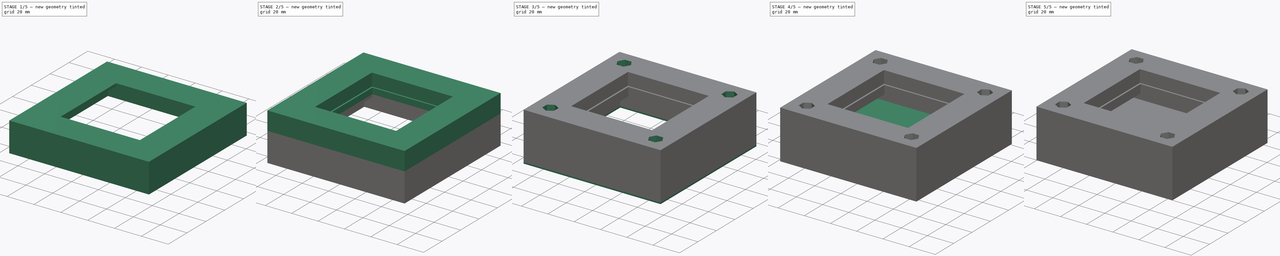
[diagram: build sequence overview — one tinted view per stage of 5, left to right]
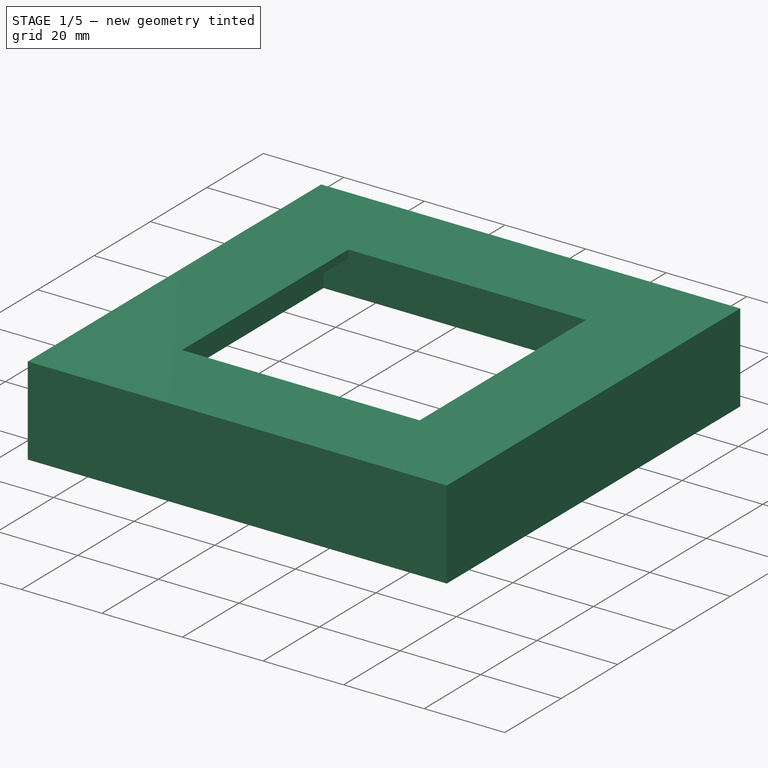
[diagram: stage 1 of 5 — iso view after this stage's code; geometry added in this stage tinted green]
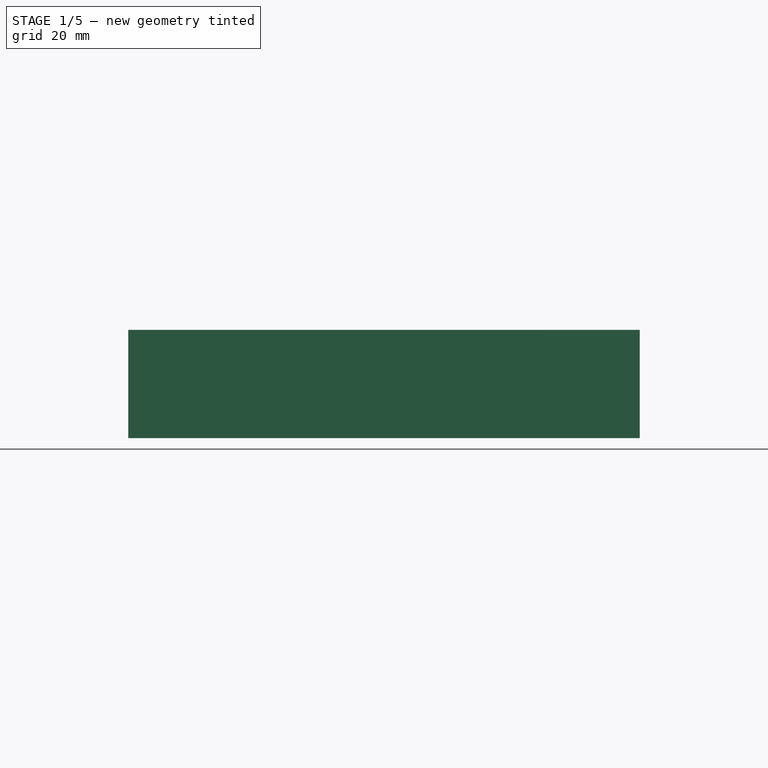
[diagram: stage 1 of 5 — front view after this stage's code; geometry added in this stage tinted green]
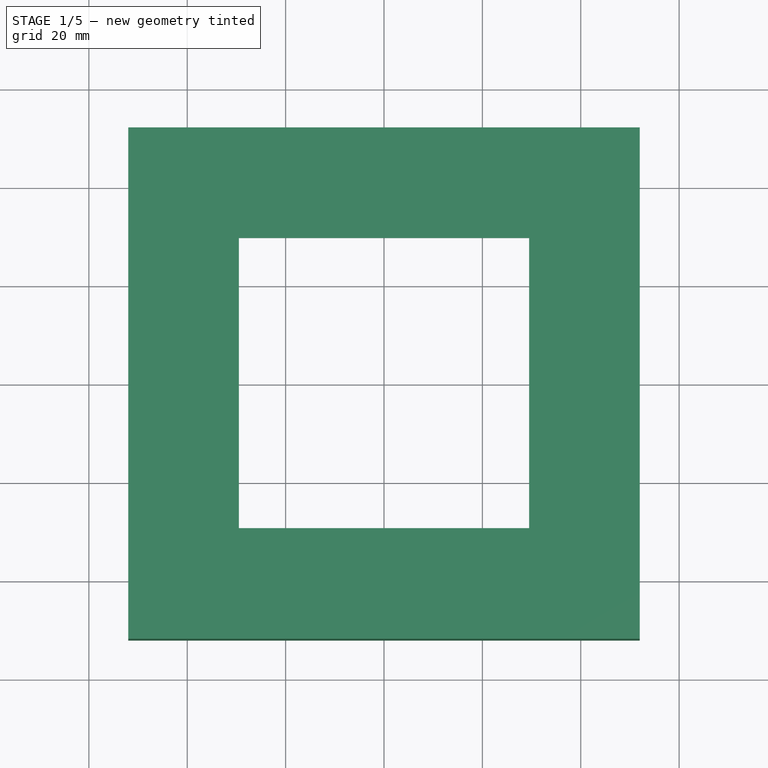
[diagram: stage 1 of 5 — top view after this stage's code; geometry added in this stage tinted green]
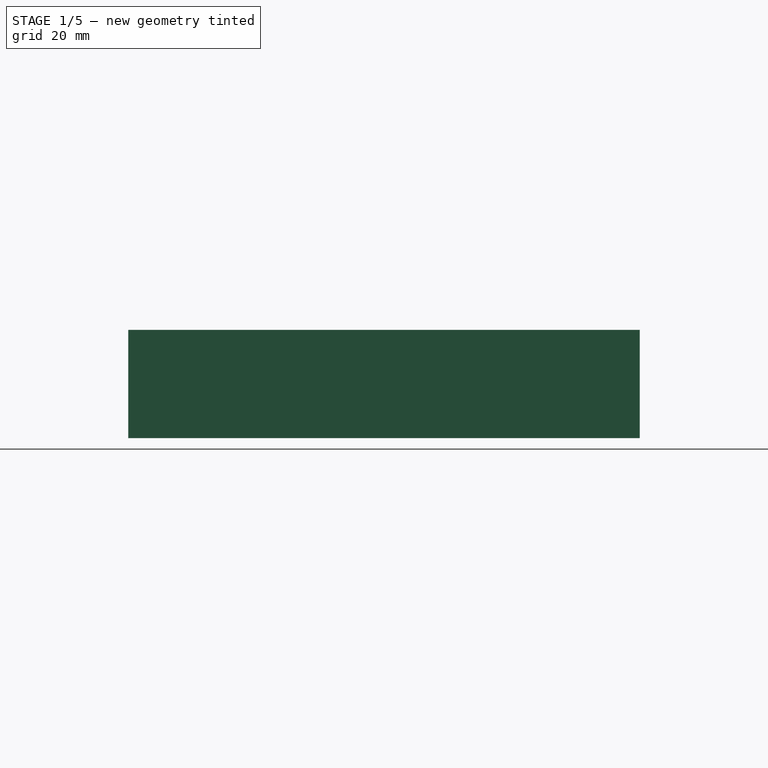
[diagram: stage 1 of 5 — right view after this stage's code; geometry added in this stage tinted green]
FCSTD DOCUMENT  (FreeCAD 1.0R39319 (Git))
Label: Matrix 3 original
License: All rights reserved
LicenseURL: http://en.wikipedia.org/wiki/All_rights_reserved
objects: Sketcher::SketchObject×11, PartDesign::Pad×8, PartDesign::Pocket×6, PartDesign::PolarPattern×2, PartDesign::Body×2, PartDesign::Chamfer×1
note: 73 computed .brp shape members not serialized (recipe doc carries the construction recipe); baked Part::Feature solids carry a one-line shape summary decoded from their .brp

FEATURE [Sketcher::SketchObject] Sketch
  ArcFitTolerance = 0
  AttachmentSupport = -> [XY_Plane]
  FullyConstrained = true
  MakeInternals = false
  MapMode = 5
  sketch-geometry (4):
    g0: LineSegment StartX=-52 StartY=52 StartZ=0 EndX=52 EndY=52 EndZ=0
    g1: LineSegment StartX=52 StartY=52 StartZ=0 EndX=52 EndY=-52 EndZ=0
    g2: LineSegment StartX=52 StartY=-52 StartZ=0 EndX=-52 EndY=-52 EndZ=0
    g3: LineSegment StartX=-52 StartY=-52 StartZ=0 EndX=-52 EndY=52 EndZ=0
  constraints (10):
    c: Coincident(g0,g1)
    c: Coincident(g1,g2)
    c: Coincident(g2,g3)
    c: Coincident(g3,g0)
    c: Horizontal(g2)
    c: Vertical(g1)
    c: Symmetric(g0,g0,g-2)
    c: Symmetric(g2,g0,g-1)
    c: Equal(g3,g0)
    c: DistanceX(g2,g2) = 104
FEATURE [PartDesign::Pad] Pad
  Direction = (1,1,1)
  Length = 22
  Length2 = 100
  Profile = -> Sketch
  Suppressed = false
  Type = 0
FEATURE [Sketcher::SketchObject] Sketch002
  ArcFitTolerance = 0
  AttachmentSupport = -> [XY_Plane]
  FullyConstrained = true
  MakeInternals = false
  MapMode = 5
  sketch-geometry (4):
    g0: LineSegment StartX=-50.1 StartY=50.1 StartZ=0 EndX=50.1 EndY=50.1 EndZ=0
    g1: LineSegment StartX=50.1 StartY=50.1 StartZ=0 EndX=50.1 EndY=-50.1 EndZ=0
    g2: LineSegment StartX=50.1 StartY=-50.1 StartZ=0 EndX=-50.1 EndY=-50.1 EndZ=0
    g3: LineSegment StartX=-50.1 StartY=-50.1 StartZ=0 EndX=-50.1 EndY=50.1 EndZ=0
  constraints (10):
    c: Coincident(g0,g1)
    c: Coincident(g1,g2)
    c: Coincident(g2,g3)
    c: Coincident(g3,g0)
    c: Horizontal(g2)
    c: Vertical(g1)
    c: Symmetric(g0,g0,g-2)
    c: Symmetric(g2,g0,g-1)
    c: Equal(g3,g0)
    c: DistanceX(g2,g2) = 100.2
FEATURE [PartDesign::Pocket] Pocket
  BaseFeature = -> Pad
  Direction = (1,1,1)
  Length = 20
  Length2 = 100
  Profile = -> Sketch002
  Reversed = true
  Suppressed = false
  Type = 0
FEATURE [Sketcher::SketchObject] Sketch003
  ArcFitTolerance = 0
  AttachmentSupport = -> [XY_Plane]
  FullyConstrained = true
  MakeInternals = false
  MapMode = 5
  sketch-geometry (4):
    g0: LineSegment StartX=-29.5 StartY=29.5 StartZ=0 EndX=29.5 EndY=29.5 EndZ=0
    g1: LineSegment StartX=29.5 StartY=29.5 StartZ=0 EndX=29.5 EndY=-29.5 EndZ=0
    g2: LineSegment StartX=29.5 StartY=-29.5 StartZ=0 EndX=-29.5 EndY=-29.5 EndZ=0
    g3: LineSegment StartX=-29.5 StartY=-29.5 StartZ=0 EndX=-29.5 EndY=29.5 EndZ=0
  constraints (10):
    c: Coincident(g0,g1)
    c: Coincident(g1,g2)
    c: Coincident(g2,g3)
    c: Coincident(g3,g0)
    c: Horizontal(g2)
    c: Vertical(g1)
    c: Symmetric(g0,g0,g-2)
    c: Symmetric(g2,g0,g-1)
    c: Equal(g3,g0)
    c: DistanceX(g2,g2) = 59
FEATURE [PartDesign::Pocket] Pocket001
  BaseFeature = -> Pocket
  Direction = (1,1,1)
  Length = 5
  Length2 = 100
  Profile = -> Sketch003
  Reversed = true
  Suppressed = false
  Type = 1
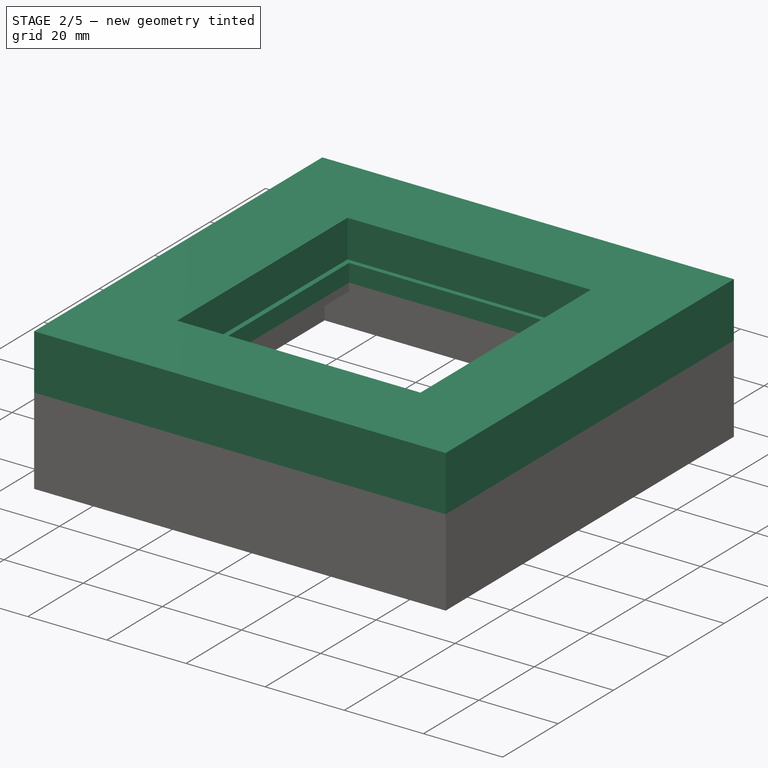
[diagram: stage 2 of 5 — iso view after this stage's code; geometry added in this stage tinted green]
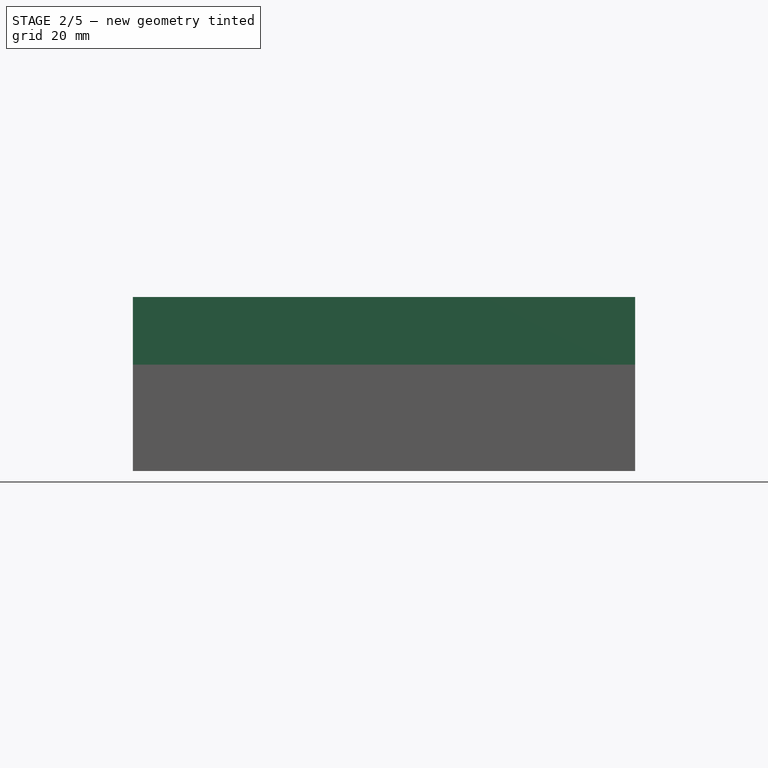
[diagram: stage 2 of 5 — front view after this stage's code; geometry added in this stage tinted green]
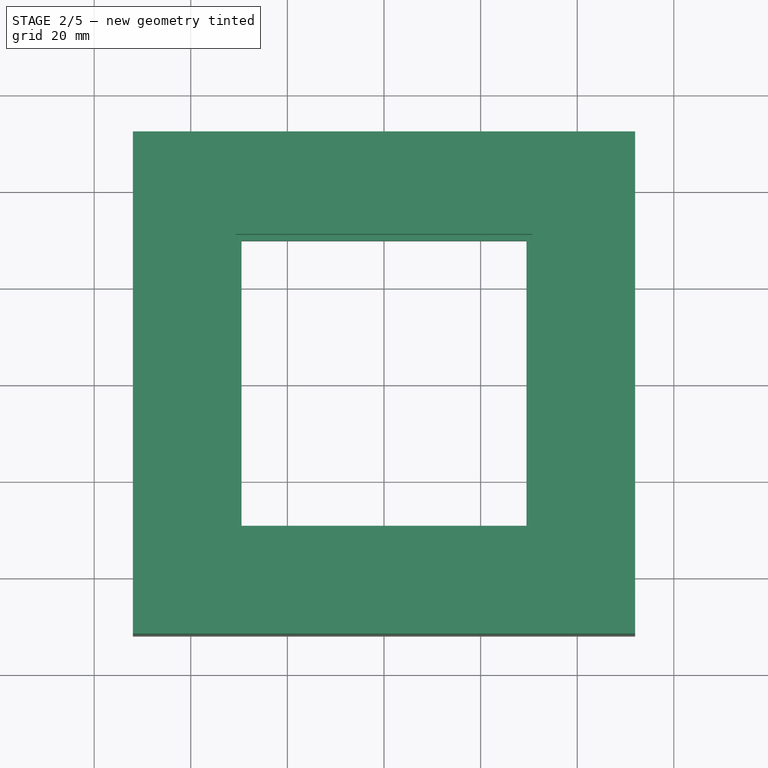
[diagram: stage 2 of 5 — top view after this stage's code; geometry added in this stage tinted green]
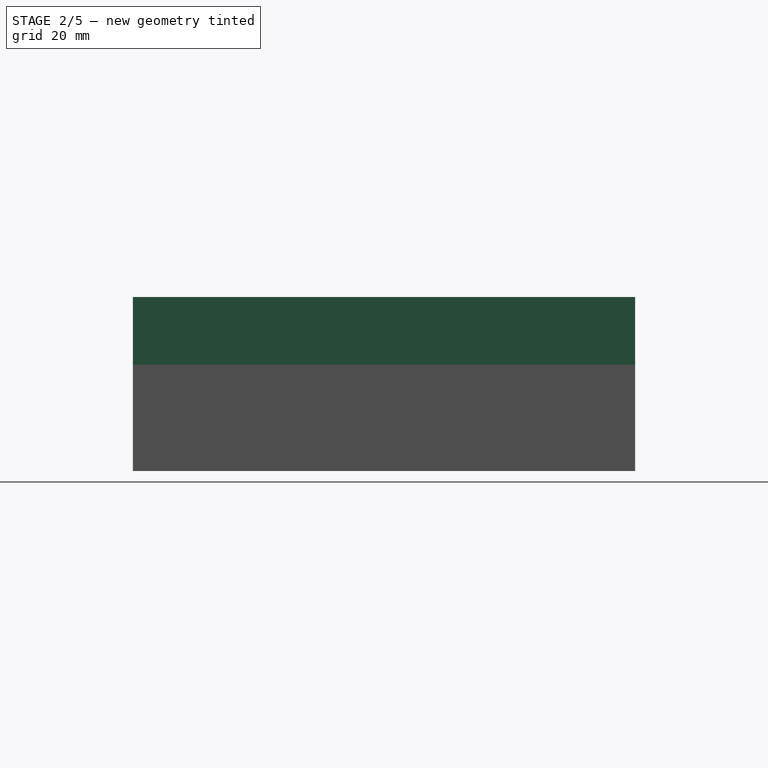
[diagram: stage 2 of 5 — right view after this stage's code; geometry added in this stage tinted green]
FEATURE [PartDesign::Pad] Pad001
  BaseFeature = -> Pocket001
  Direction = (1,1,1)
  Length = 4.5
  Length2 = 100
  Profile = -> Pocket001 [Face5]
  Suppressed = false
  Type = 0
FEATURE [Sketcher::SketchObject] Sketch004
  ArcFitTolerance = 0
  AttachmentSupport = -> [Pad001]
  ExternalGeometry = -> [Pad001]
  FullyConstrained = true
  MakeInternals = false
  MapMode = 5
  Placement = pos=(0,0,26.5) rot=(0,0,1;0rad)
  sketch-geometry (8):
    g0: LineSegment StartX=-52 StartY=52 StartZ=0 EndX=52 EndY=52 EndZ=0
    g1: LineSegment StartX=52 StartY=52 StartZ=0 EndX=52 EndY=-52 EndZ=0
    g2: LineSegment StartX=52 StartY=-52 StartZ=0 EndX=-52 EndY=-52 EndZ=0
    g3: LineSegment StartX=-52 StartY=-52 StartZ=0 EndX=-52 EndY=52 EndZ=0
    g4: LineSegment StartX=-30.75 StartY=30.75 StartZ=0 EndX=30.75 EndY=30.75 EndZ=0
    g5: LineSegment StartX=30.75 StartY=30.75 StartZ=0 EndX=30.75 EndY=-30.75 EndZ=0
    g6: LineSegment StartX=30.75 StartY=-30.75 StartZ=0 EndX=-30.75 EndY=-30.75 EndZ=0
    g7: LineSegment StartX=-30.75 StartY=-30.75 StartZ=0 EndX=-30.75 EndY=30.75 EndZ=0
  constraints (20):
    c: Coincident(g0,g1)
    c: Coincident(g1,g2)
    c: Coincident(g2,g3)
    c: Coincident(g3,g0)
    c: Horizontal(g0)
    c: Horizontal(g2)
    c: Vertical(g1)
    c: Vertical(g3)
    c: Coincident(g0,g-3)
    c: Coincident(g1,g-4)
    c: Coincident(g4,g5)
    c: Coincident(g5,g6)
    c: Coincident(g6,g7)
    c: Coincident(g7,g4)
    c: Horizontal(g4)
    c: Vertical(g5)
    c: Symmetric(g6,g5,g-2)
    c: Symmetric(g4,g6,g-1)
    c: Equal(g7,g4)
    c: DistanceX(g4,g4) = 61.5
FEATURE [PartDesign::Pad] Pad002
  BaseFeature = -> Pad001
  Direction = (1,1,1)
  Length = 1.5
  Length2 = 100
  Profile = -> Sketch004
  Suppressed = false
  Type = 0
FEATURE [PartDesign::Pad] Pad003
  BaseFeature = -> Pad002
  Direction = (1,1,1)
  Length = 8
  Length2 = 100
  Profile = -> Pad002 [Face18]
  Suppressed = false
  Type = 0
FEATURE [Sketcher::SketchObject] Sketch005
  ArcFitTolerance = 0
  AttachmentSupport = -> [Pad003]
  ExternalGeometry = -> [Pad003]
  FullyConstrained = true
  MakeInternals = false
  MapMode = 5
  Placement = pos=(0,0,36) rot=(0,0,1;0rad)
  sketch-geometry (4):
    g0: LineSegment StartX=-3 StartY=-30.75 StartZ=0 EndX=3 EndY=-30.75 EndZ=0
    g1: LineSegment StartX=3 StartY=-30.75 StartZ=0 EndX=3 EndY=-42.75 EndZ=0
    g2: LineSegment StartX=-3 StartY=-42.75 StartZ=0 EndX=-3 EndY=-30.75 EndZ=0
    g3: ArcOfCircle CenterX=-1e-16 CenterY=-42.75 CenterZ=0 NormalX=0 NormalY=0 NormalZ=1 AngleXU=0 Radius=3 StartAngle=3.14159 EndAngle=6.28319
  constraints (10):
    c: Coincident(g0,g1)
    c: Coincident(g2,g0)
    c: Horizontal(g0)
    c: Vertical(g1)
    c: DistanceY(g-3,g0) = 0
    c: Tangent(g2,g3) = 1.5708
    c: Tangent(g1,g3) = 1.5708
    c: Symmetric(g2,g1,g-2)
    c: DistanceX(g0,g0) = 6
    c: DistanceY(g1,g1) = 12
FEATURE [PartDesign::Pocket] Pocket002
  BaseFeature = -> Pad003
  Direction = (1,1,1)
  Length = 7
  Length2 = 100
  Profile = -> Sketch005
  Suppressed = false
  Type = 0
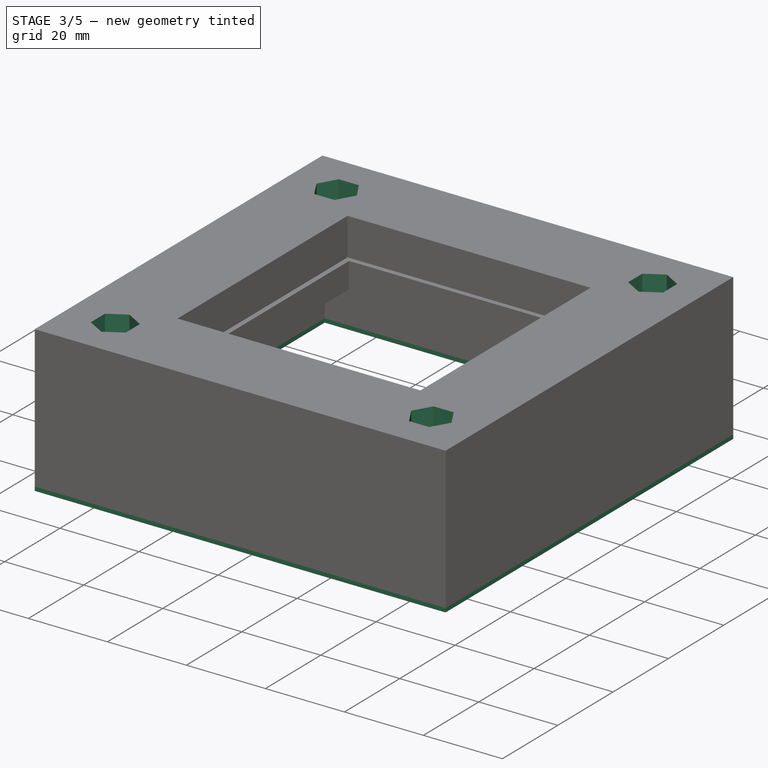
[diagram: stage 3 of 5 — iso view after this stage's code; geometry added in this stage tinted green]
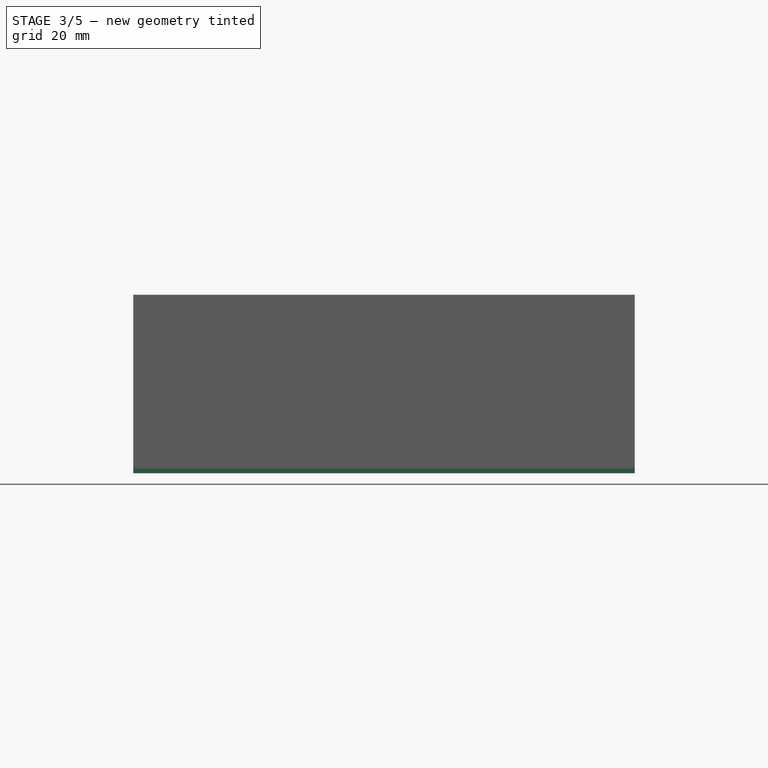
[diagram: stage 3 of 5 — front view after this stage's code; geometry added in this stage tinted green]
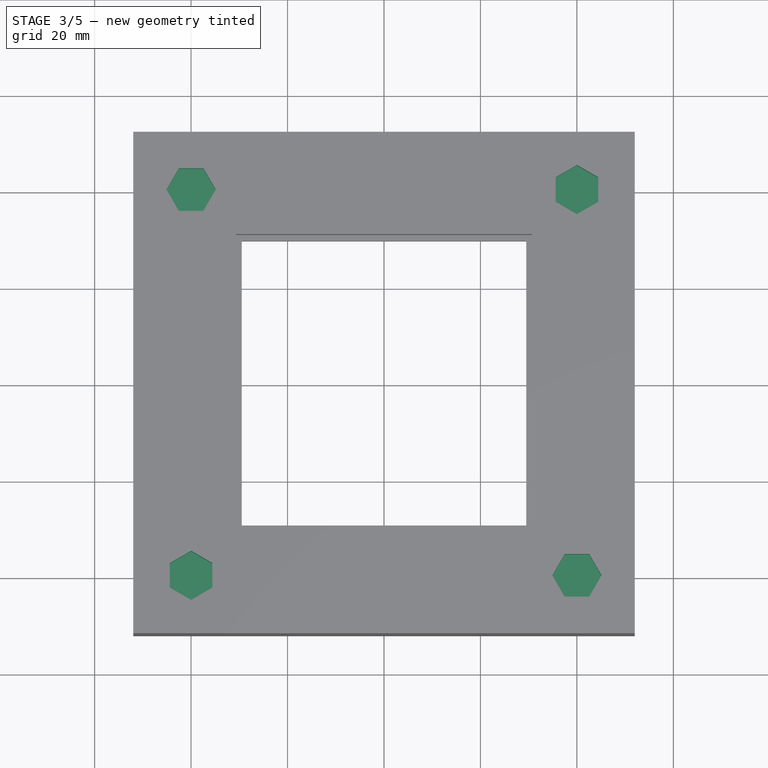
[diagram: stage 3 of 5 — top view after this stage's code; geometry added in this stage tinted green]
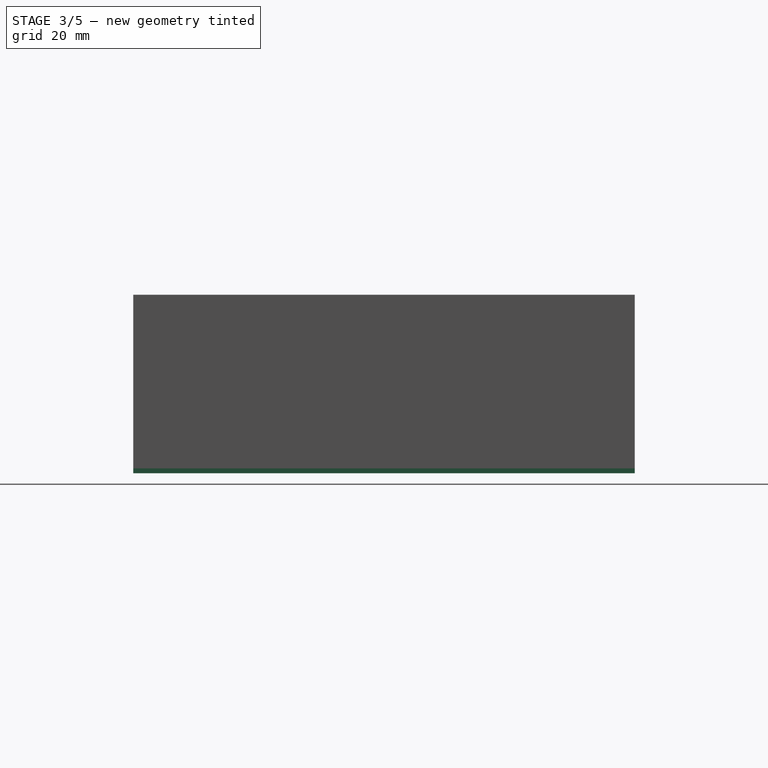
[diagram: stage 3 of 5 — right view after this stage's code; geometry added in this stage tinted green]
FEATURE [Sketcher::SketchObject] Sketch012
  ArcFitTolerance = 0
  AttachmentOffset = pos=(0,0,36) rot=(0,0,1;0rad)
  AttachmentSupport = -> [XY_Plane]
  FullyConstrained = true
  MakeInternals = false
  MapMode = 5
  Placement = pos=(0,0,36) rot=(0,0,1;0rad)
  sketch-geometry (7):
    g0: LineSegment StartX=-42.55 StartY=35.5833 StartZ=0 EndX=-37.45 EndY=35.5833 EndZ=0
    g1: LineSegment StartX=-37.45 StartY=35.5833 StartZ=0 EndX=-34.9 EndY=40 EndZ=0
    g2: LineSegment StartX=-34.9 StartY=40 StartZ=0 EndX=-37.45 EndY=44.4167 EndZ=0
    g3: LineSegment StartX=-37.45 StartY=44.4167 StartZ=0 EndX=-42.55 EndY=44.4167 EndZ=0
    g4: LineSegment StartX=-42.55 StartY=44.4167 StartZ=0 EndX=-45.1 EndY=40 EndZ=0
    g5: LineSegment StartX=-45.1 StartY=40 StartZ=0 EndX=-42.55 EndY=35.5833 EndZ=0
    g6: Circle [constr] CenterX=-40 CenterY=40 CenterZ=0 NormalX=0 NormalY=0 NormalZ=1 AngleXU=0 Radius=5.1
  constraints (17):
    c: Coincident(g0,g1)
    c: Coincident(g1,g2)
    c: Coincident(g2,g3)
    c: Coincident(g3,g4)
    c: Coincident(g4,g5)
    c: Coincident(g5,g0)
    c: Equal(g0, g1-g5) x5
    c: PointOnObject(g0,g6)
    c: PointOnObject(g1,g6)
    c: PointOnObject(g2,g6)
    c: PointOnObject(g3,g6)
    c: PointOnObject(g4,g6)
    c: PointOnObject(g5,g6)
    c: DistanceX(g6,g-1) = 40
    c: DistanceY(g-1,g6) = 40
    c: Horizontal(g3)
    c: Diameter(g6) = 10.2
FEATURE [PartDesign::Pocket] Pocket005
  BaseFeature = -> Pocket002
  Direction = (1,1,1)
  Length = 6
  Length2 = 100
  Profile = -> Sketch012
  Suppressed = false
  Type = 0
FEATURE [PartDesign::PolarPattern] PolarPattern
  Angle = 360
  Axis = -> Sketch012 [N_Axis]
  BaseFeature = -> Pocket005
  Mode = 0
  Occurrences = 4
  Offset = 120
  Originals = -> [Pocket005]
  Suppressed = false
  TransformMode = 0
FEATURE [PartDesign::Body] Body001  label="Cover"
  AllowCompound = false
  Group = -> [Sketch007,Sketch008,Pad004,Pad005,Sketch009,Pocket003,Sketch010,Pocket004,Sketch013,Pad007,PolarPattern001,Chamfer]
  Origin = -> Origin001
  Placement = pos=(0,0,36) rot=(0,0,1;0rad)
  Tip = -> Chamfer
FEATURE [PartDesign::Pad] Pad008
  BaseFeature = -> PolarPattern
  Direction = (1,1,1)
  Length = 1
  Length2 = 100
  Profile = -> PolarPattern [Face4]
  Suppressed = false
  Type = 0
FEATURE [PartDesign::Body] Body  label="Box"
  AllowCompound = false
  Group = -> [Sketch,Pad,Sketch002,Pocket,Sketch003,Pocket001,Pad001,Sketch004,Pad002,Pad003,Sketch005,Pocket002,Sketch012,Pocket005,PolarPattern,Pad008]
  Origin = -> Origin
  Tip = -> Pad008
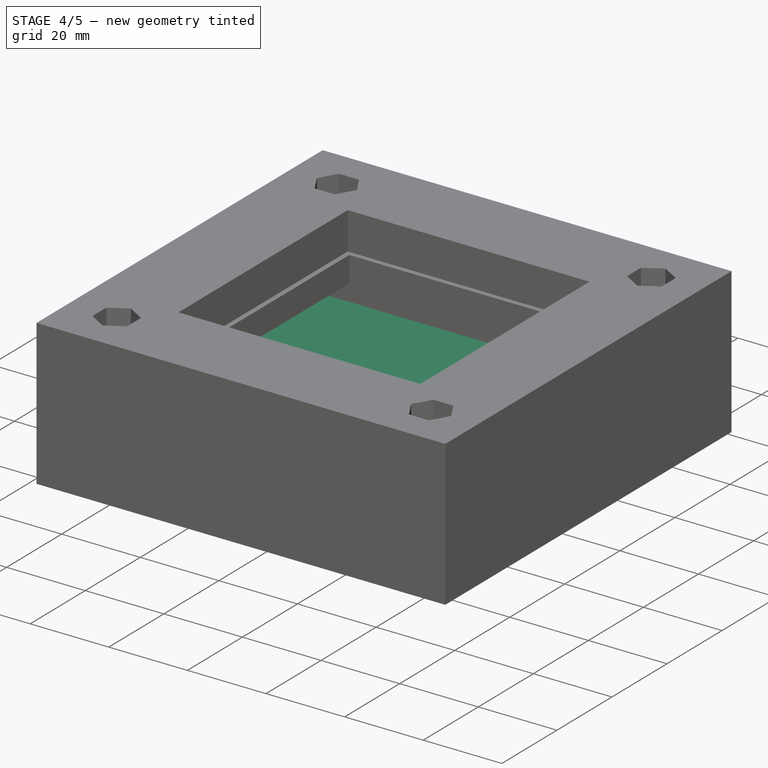
[diagram: stage 4 of 5 — iso view after this stage's code; geometry added in this stage tinted green]
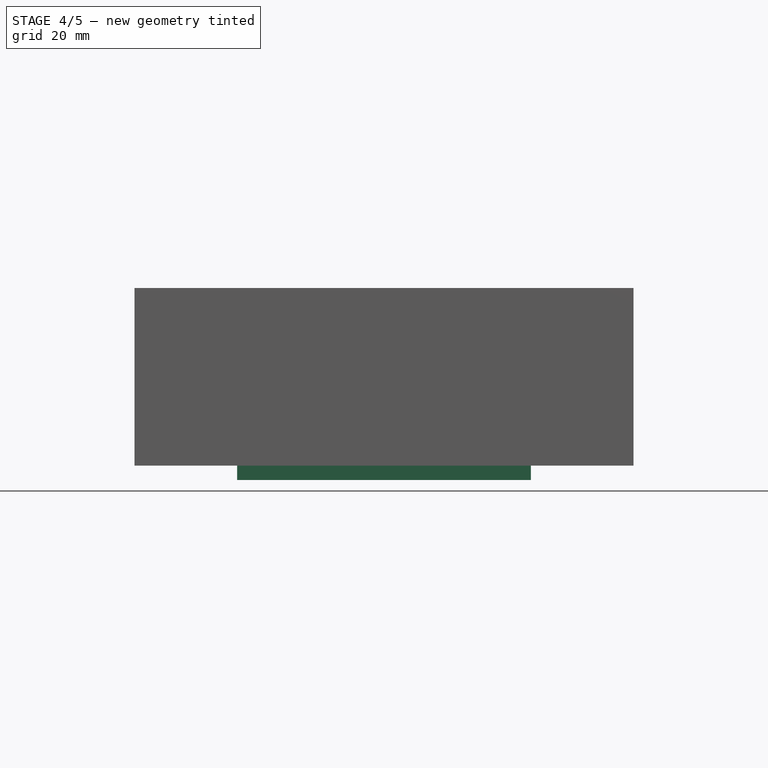
[diagram: stage 4 of 5 — front view after this stage's code; geometry added in this stage tinted green]
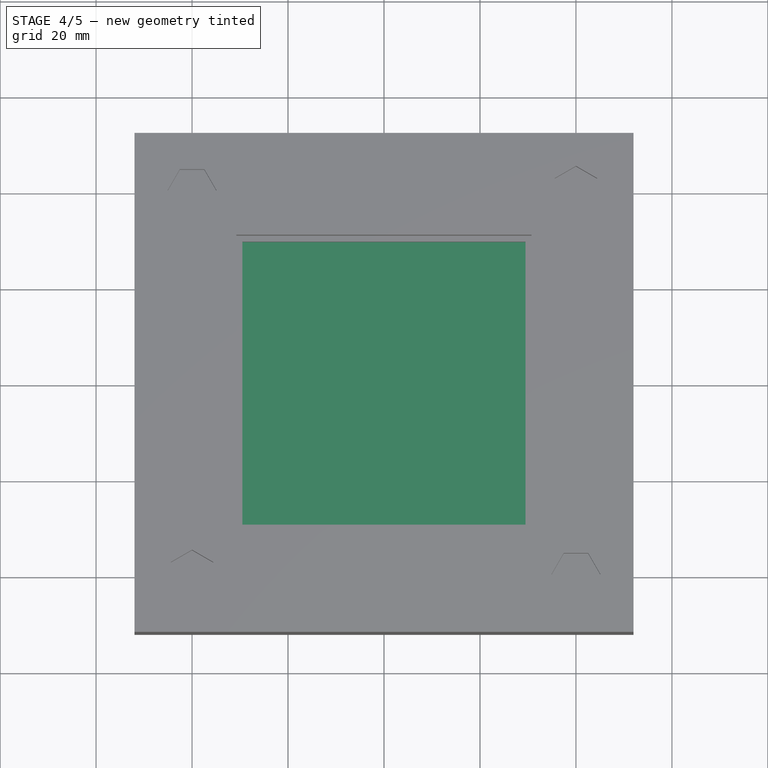
[diagram: stage 4 of 5 — top view after this stage's code; geometry added in this stage tinted green]
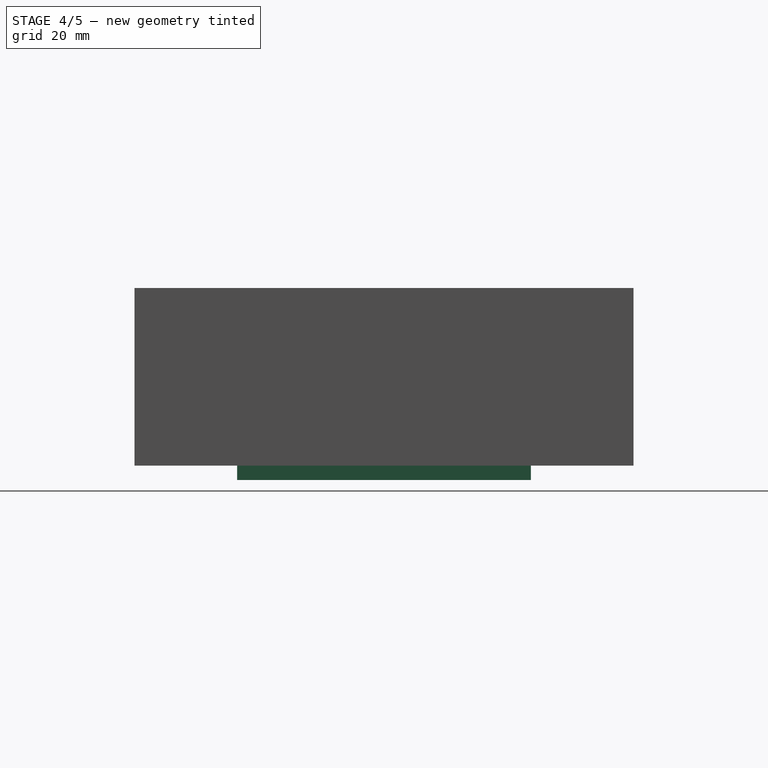
[diagram: stage 4 of 5 — right view after this stage's code; geometry added in this stage tinted green]
FEATURE [Sketcher::SketchObject] Sketch007
  ArcFitTolerance = 0
  AttachmentSupport = -> [XY_Plane001]
  ExternalGeometry = -> [Pad001]
  FullyConstrained = true
  MakeInternals = false
  MapMode = 5
  sketch-geometry (4):
    g0: LineSegment StartX=-52 StartY=52 StartZ=0 EndX=52 EndY=52 EndZ=0
    g1: LineSegment StartX=52 StartY=52 StartZ=0 EndX=52 EndY=-52 EndZ=0
    g2: LineSegment StartX=52 StartY=-52 StartZ=0 EndX=-52 EndY=-52 EndZ=0
    g3: LineSegment StartX=-52 StartY=-52 StartZ=0 EndX=-52 EndY=52 EndZ=0
  constraints (10):
    c: Coincident(g0,g1)
    c: Coincident(g1,g2)
    c: Coincident(g2,g3)
    c: Coincident(g3,g0)
    c: Horizontal(g0)
    c: Horizontal(g2)
    c: Vertical(g1)
    c: Vertical(g3)
    c: Coincident(g0,g-3)
    c: Coincident(g1,g-4)
FEATURE [Sketcher::SketchObject] Sketch008
  ArcFitTolerance = 0
  AttachmentSupport = -> [XY_Plane001]
  ExternalGeometry = -> [Pad001]
  FullyConstrained = true
  MakeInternals = false
  MapMode = 5
  sketch-geometry (8):
    g0: LineSegment StartX=-30.6 StartY=30.6 StartZ=0 EndX=30.6 EndY=30.6 EndZ=0
    g1: LineSegment StartX=30.6 StartY=30.6 StartZ=0 EndX=30.6 EndY=-30.6 EndZ=0
    g2: LineSegment StartX=30.6 StartY=-30.6 StartZ=0 EndX=-30.6 EndY=-30.6 EndZ=0
    g3: LineSegment StartX=-30.6 StartY=-30.6 StartZ=0 EndX=-30.6 EndY=30.6 EndZ=0
    g4: LineSegment StartX=-26.6 StartY=26.6 StartZ=0 EndX=26.6 EndY=26.6 EndZ=0
    g5: LineSegment StartX=26.6 StartY=26.6 StartZ=0 EndX=26.6 EndY=-26.6 EndZ=0
    g6: LineSegment StartX=26.6 StartY=-26.6 StartZ=0 EndX=-26.6 EndY=-26.6 EndZ=0
    g7: LineSegment StartX=-26.6 StartY=-26.6 StartZ=0 EndX=-26.6 EndY=26.6 EndZ=0
  constraints (20):
    c: Coincident(g0,g1)
    c: Coincident(g1,g2)
    c: Coincident(g2,g3)
    c: Coincident(g3,g0)
    c: Horizontal(g0)
    c: Vertical(g1)
    c: Symmetric(g2,g1,g-2)
    c: Symmetric(g0,g2,g-1)
    c: Equal(g3,g0)
    c: DistanceX(g0,g0) = 61.2
    c: Coincident(g4,g5)
    c: Coincident(g5,g6)
    c: Coincident(g6,g7)
    c: Coincident(g7,g4)
    c: Symmetric(g6,g5,g-2)
    c: Symmetric(g6,g4,g-1)
    c: Horizontal(g4)
    c: Vertical(g5)
    c: Equal(g7,g4)
    c: DistanceX(g4,g0) = 4
FEATURE [PartDesign::Pad] Pad004
  Direction = (1,1,1)
  Length = 4
  Length2 = 100
  Profile = -> Sketch007
  Suppressed = false
  Type = 0
FEATURE [PartDesign::Pad] Pad005
  BaseFeature = -> Pad004
  Direction = (1,1,1)
  Length = 4
  Length2 = 100
  Profile = -> Sketch008
  Reversed = true
  Suppressed = false
  Type = 0
FEATURE [Sketcher::SketchObject] Sketch009
  ArcFitTolerance = 0
  AttachmentSupport = -> [Pad005]
  ExternalGeometry = -> [Pad005]
  FullyConstrained = true
  MakeInternals = false
  MapMode = 5
  Placement = pos=(0,0,4) rot=(0,0,1;0rad)
  sketch-geometry (4):
    g0: LineSegment StartX=-3 StartY=-43 StartZ=0 EndX=-3 EndY=-52 EndZ=0
    g1: LineSegment StartX=-3 StartY=-52 StartZ=0 EndX=3 EndY=-52 EndZ=0
    g2: LineSegment StartX=3 StartY=-52 StartZ=0 EndX=3 EndY=-43 EndZ=0
    g3: ArcOfCircle CenterX=-2e-16 CenterY=-43 CenterZ=0 NormalX=0 NormalY=0 NormalZ=1 AngleXU=0 Radius=3 StartAngle=8e-16 EndAngle=3.14159
  constraints (11):
    c: PointOnObject(g0,g-3)
    c: Vertical(g0)
    c: Coincident(g0,g1)
    c: PointOnObject(g1,g-3)
    c: Coincident(g1,g2)
    c: Vertical(g2)
    c: Symmetric(g0,g2,g-2)
    c: Coincident(g3,g2)
    c: Tangent(g3,g0) = -1.5708
    c: DistanceX(g1,g1) = 6
    c: DistanceY(g0,g0) = 9
FEATURE [PartDesign::Pocket] Pocket003
  BaseFeature = -> Pad005
  Direction = (1,1,1)
  Length = 5
  Length2 = 100
  Profile = -> Sketch009
  Suppressed = false
  Type = 0
FEATURE [Sketcher::SketchObject] Sketch010
  ArcFitTolerance = 0
  AttachmentSupport = -> [Pocket003]
  ExternalGeometry = -> [Pocket003]
  FullyConstrained = false
  MakeInternals = false
  MapMode = 5
  Placement = pos=(0,0,-4) rot=(1,0,0;3.14159rad)
  sketch-geometry (4):
    g0: LineSegment StartX=-3 StartY=32.114 StartZ=0 EndX=3 EndY=32.114 EndZ=0
    g1: LineSegment StartX=3 StartY=32.114 StartZ=0 EndX=3 EndY=23.9232 EndZ=0
    g2: LineSegment StartX=3 StartY=23.9232 StartZ=0 EndX=-3 EndY=23.9232 EndZ=0
    g3: LineSegment StartX=-3 StartY=23.9232 StartZ=0 EndX=-3 EndY=32.114 EndZ=0
  constraints (10):
    c: Coincident(g0,g1)
    c: Coincident(g1,g2)
    c: Coincident(g2,g3)
    c: Coincident(g3,g0)
    c: Horizontal(g0)
    c: Horizontal(g2)
    c: Vertical(g1)
    c: Vertical(g3)
    c: PointOnObject(g0,g-3)
    c: PointOnObject(g0,g-4)
FEATURE [PartDesign::Pocket] Pocket004
  BaseFeature = -> Pocket003
  Direction = (1,1,1)
  Length = 0
  Length2 = 100
  Offset = -1.5
  Profile = -> Sketch010
  Suppressed = false
  Type = 3
  UpToFace = -> Pocket003 [Face4]
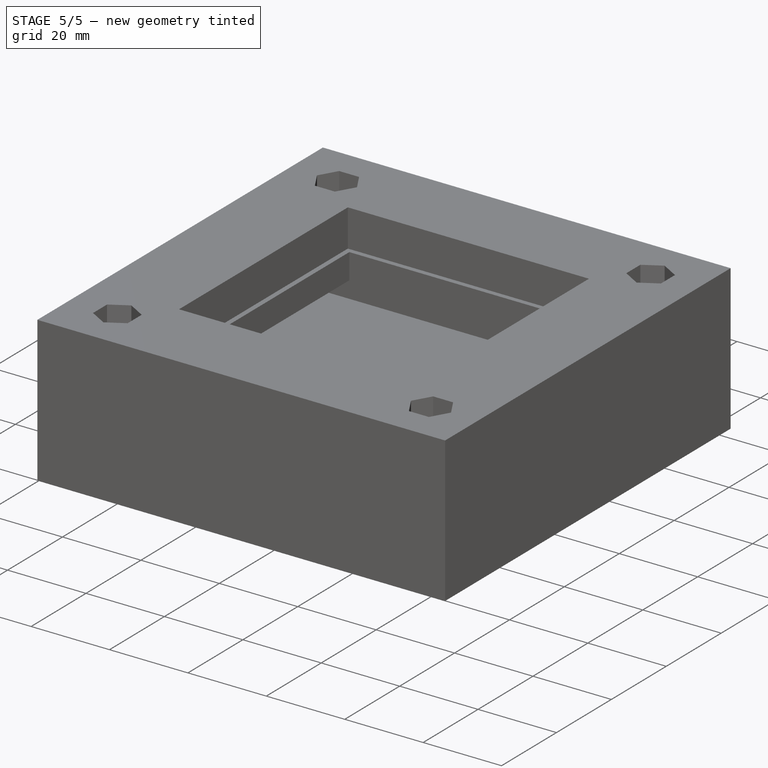
[diagram: stage 5 of 5 — iso view after this stage's code; geometry added in this stage tinted green]
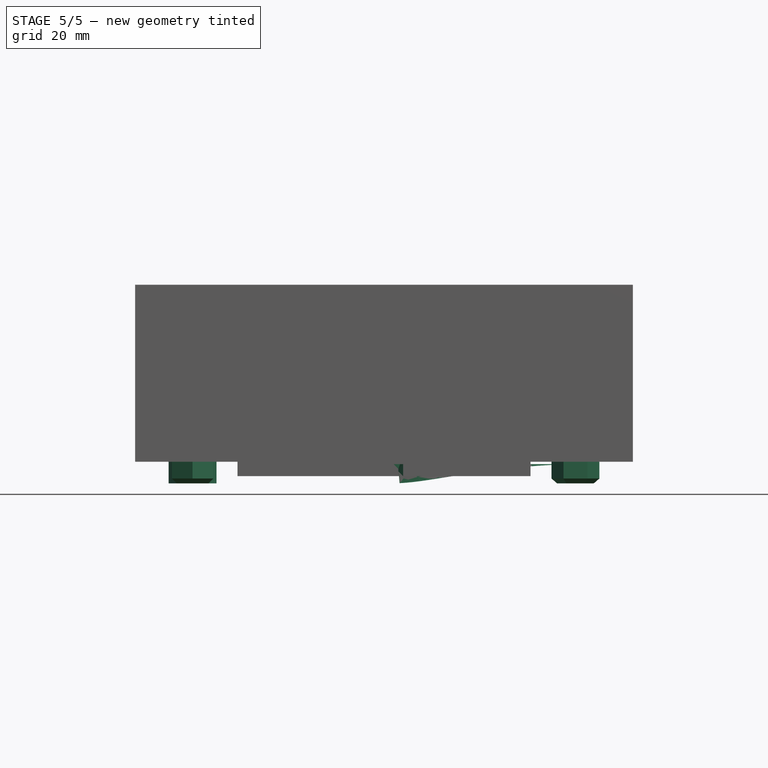
[diagram: stage 5 of 5 — front view after this stage's code; geometry added in this stage tinted green]
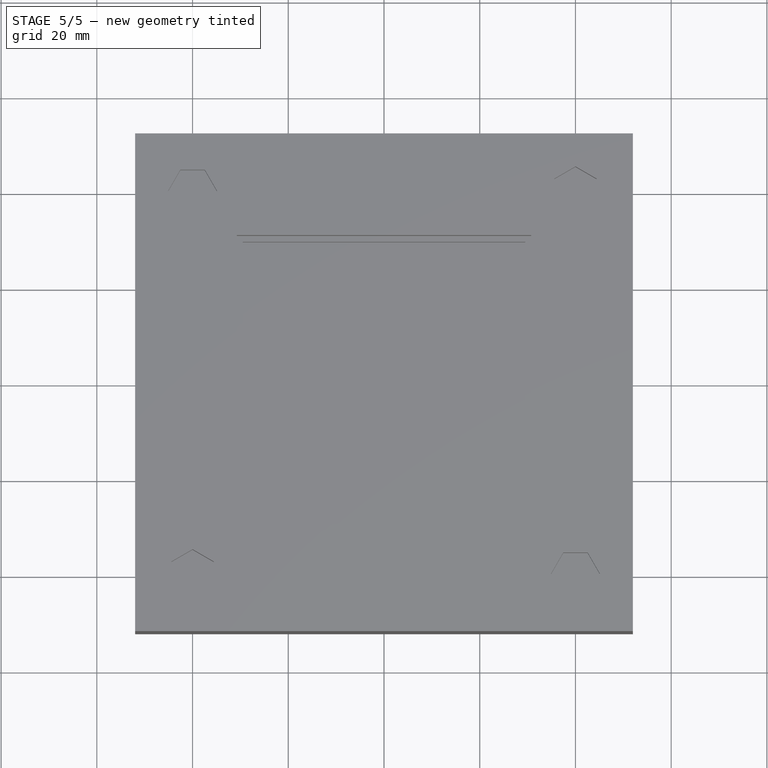
[diagram: stage 5 of 5 — top view after this stage's code; geometry added in this stage tinted green]
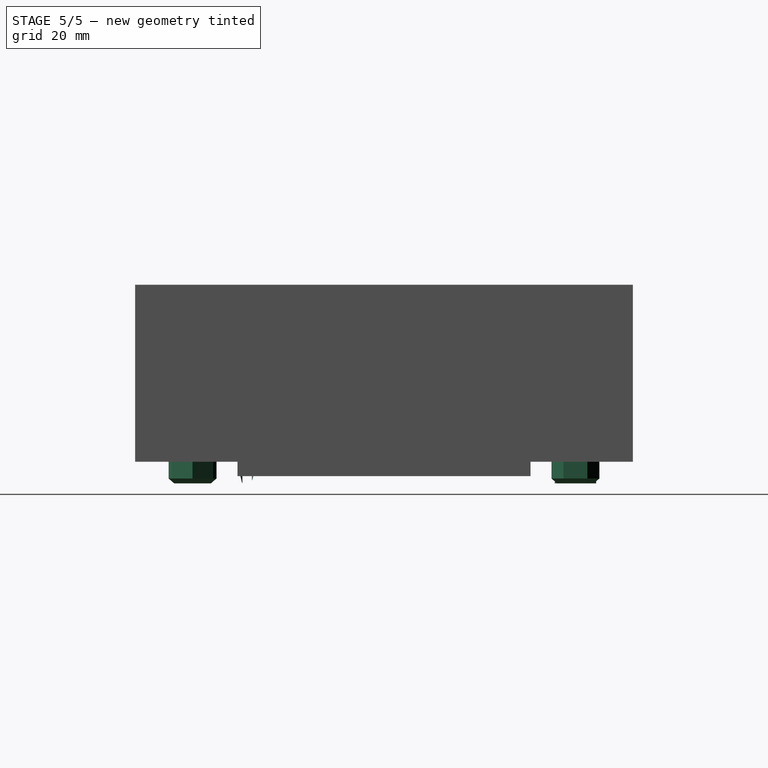
[diagram: stage 5 of 5 — right view after this stage's code; geometry added in this stage tinted green]
FEATURE [Sketcher::SketchObject] Sketch013
  ArcFitTolerance = 0
  AttachmentSupport = -> [XY_Plane001]
  FullyConstrained = true
  MakeInternals = false
  MapMode = 5
  sketch-geometry (7):
    g0: LineSegment StartX=-42.5 StartY=35.6699 StartZ=0 EndX=-37.5 EndY=35.6699 EndZ=0
    g1: LineSegment StartX=-37.5 StartY=35.6699 StartZ=0 EndX=-35 EndY=40 EndZ=0
    g2: LineSegment StartX=-35 StartY=40 StartZ=0 EndX=-37.5 EndY=44.3301 EndZ=0
    g3: LineSegment StartX=-37.5 StartY=44.3301 StartZ=0 EndX=-42.5 EndY=44.3301 EndZ=0
    g4: LineSegment StartX=-42.5 StartY=44.3301 StartZ=0 EndX=-45 EndY=40 EndZ=0
    g5: LineSegment StartX=-45 StartY=40 StartZ=0 EndX=-42.5 EndY=35.6699 EndZ=0
    g6: Circle [constr] CenterX=-40 CenterY=40 CenterZ=0 NormalX=0 NormalY=0 NormalZ=1 AngleXU=0 Radius=5
  constraints (17):
    c: Coincident(g0,g1)
    c: Coincident(g1,g2)
    c: Coincident(g2,g3)
    c: Coincident(g3,g4)
    c: Coincident(g4,g5)
    c: Coincident(g5,g0)
    c: Equal(g0, g1-g5) x5
    c: PointOnObject(g0,g6)
    c: PointOnObject(g1,g6)
    c: PointOnObject(g2,g6)
    c: PointOnObject(g3,g6)
    c: PointOnObject(g4,g6)
    c: PointOnObject(g5,g6)
    c: DistanceX(g6,g-1) = 40
    c: DistanceY(g-1,g6) = 40
    c: Horizontal(g3)
    c: Diameter(g6) = 10
FEATURE [PartDesign::Pad] Pad007
  BaseFeature = -> Pocket004
  Direction = (1,1,1)
  Length = 5.5
  Length2 = 100
  Profile = -> Sketch013
  Reversed = true
  Suppressed = false
  Type = 0
FEATURE [PartDesign::PolarPattern] PolarPattern001
  Angle = 360
  Axis = -> Sketch013 [N_Axis]
  BaseFeature = -> Pad007
  Mode = 0
  Occurrences = 4
  Offset = 120
  Originals = -> [Pad007]
  Suppressed = false
  TransformMode = 0
FEATURE [PartDesign::Chamfer] Chamfer
  Angle = 45
  Base = -> PolarPattern001 [Face45,Face46,Face40,Face39]
  BaseFeature = -> PolarPattern001
  ChamferType = 0
  FlipDirection = false
  Size = 1
  Size2 = 1
  SupportTransform = false
  Suppressed = false
  UseAllEdges = false
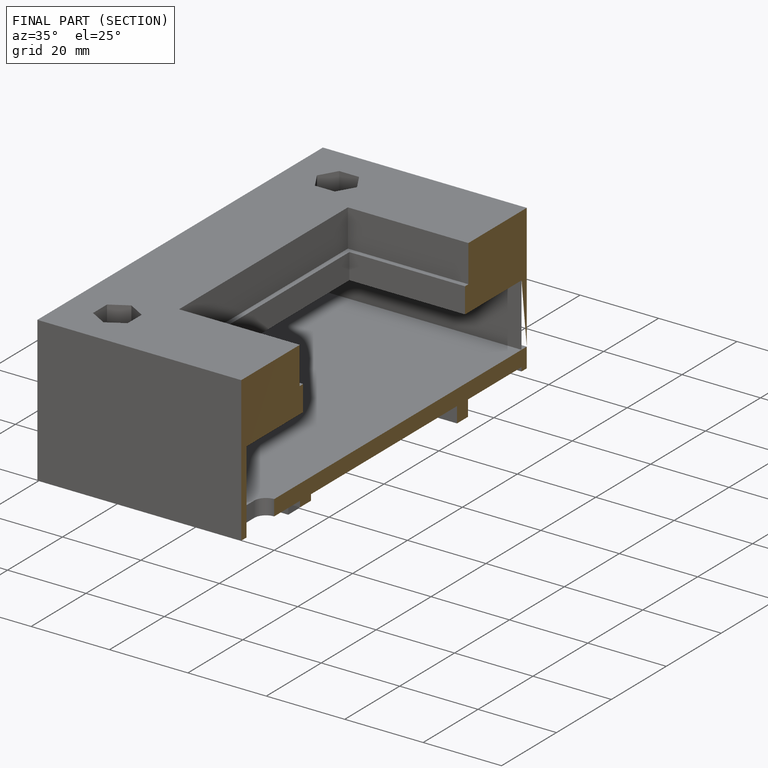
[diagram: finished part — half-section view (interior)]
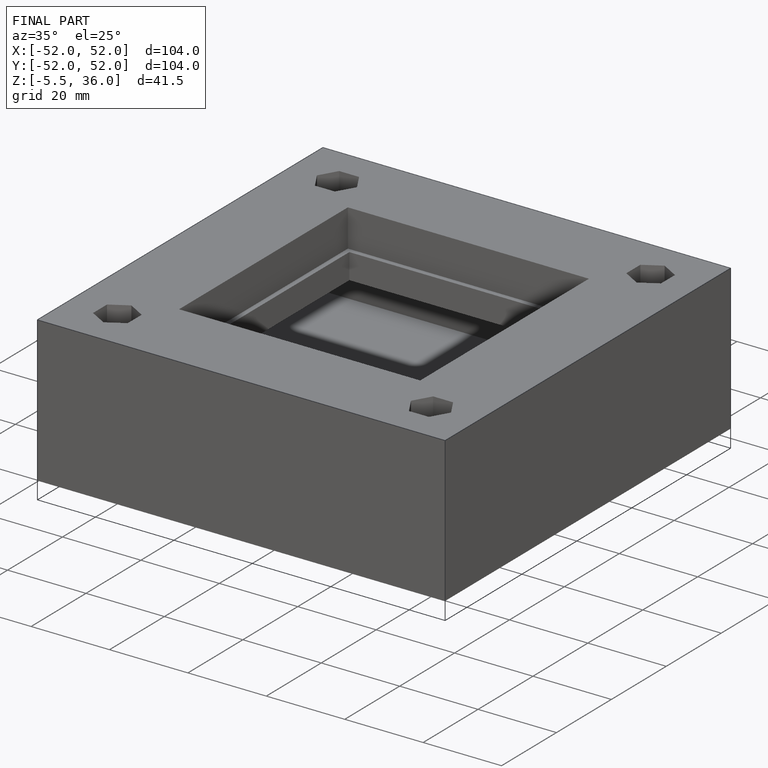
[diagram: finished part — iso view with bounding-box wireframe]
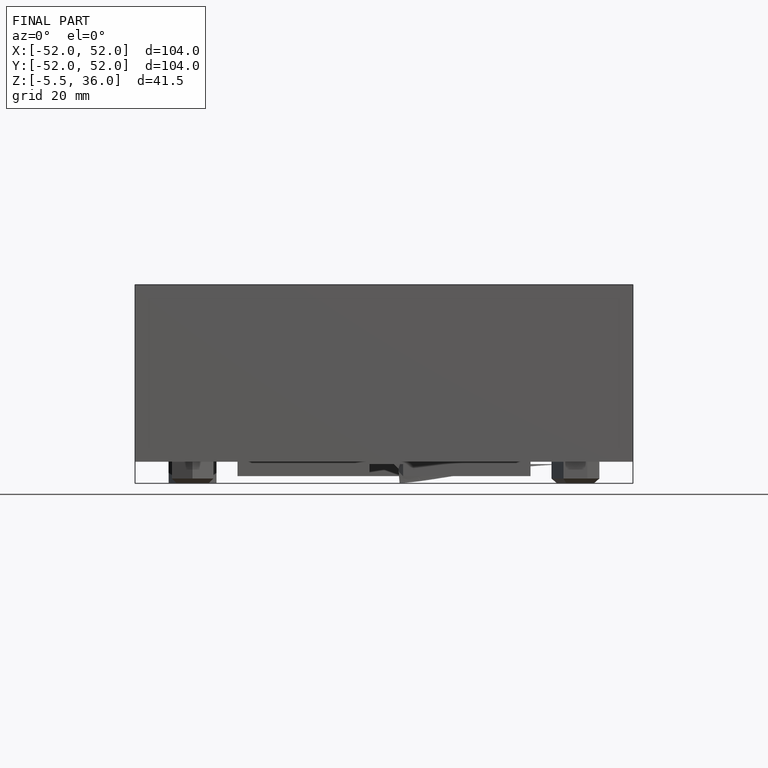
[diagram: finished part — front view with bounding-box wireframe]
